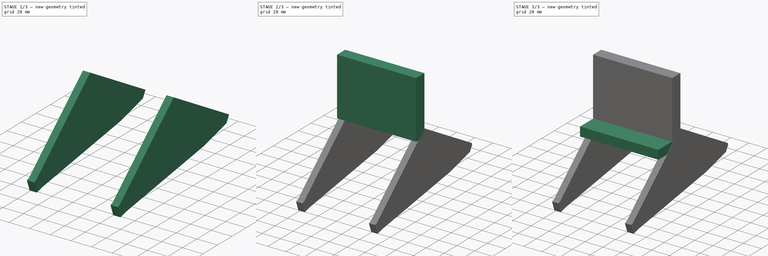
[diagram: build sequence overview — one tinted view per stage of 3, left to right]
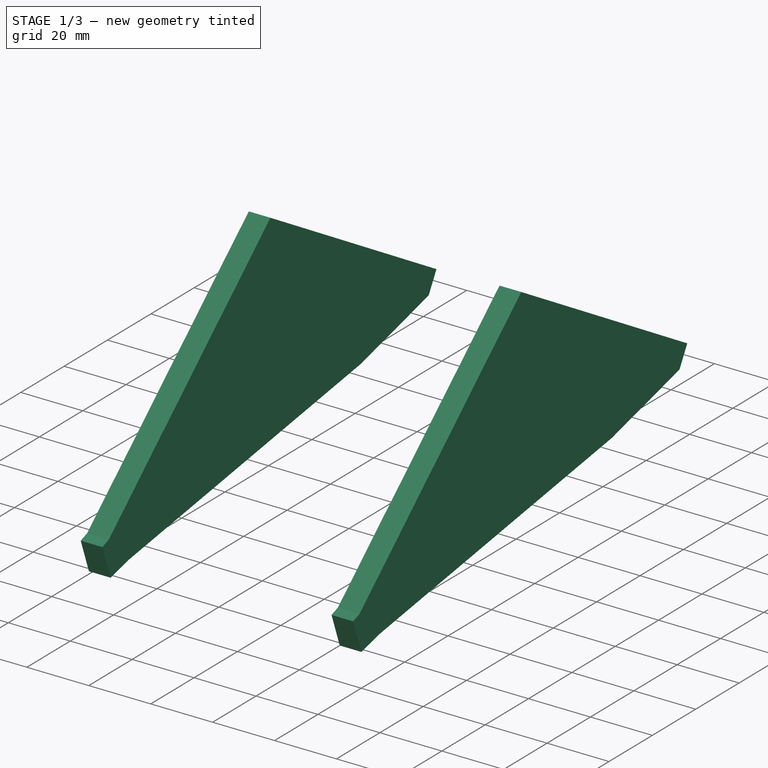
[diagram: stage 1 of 3 — iso view after this stage's code; geometry added in this stage tinted green]
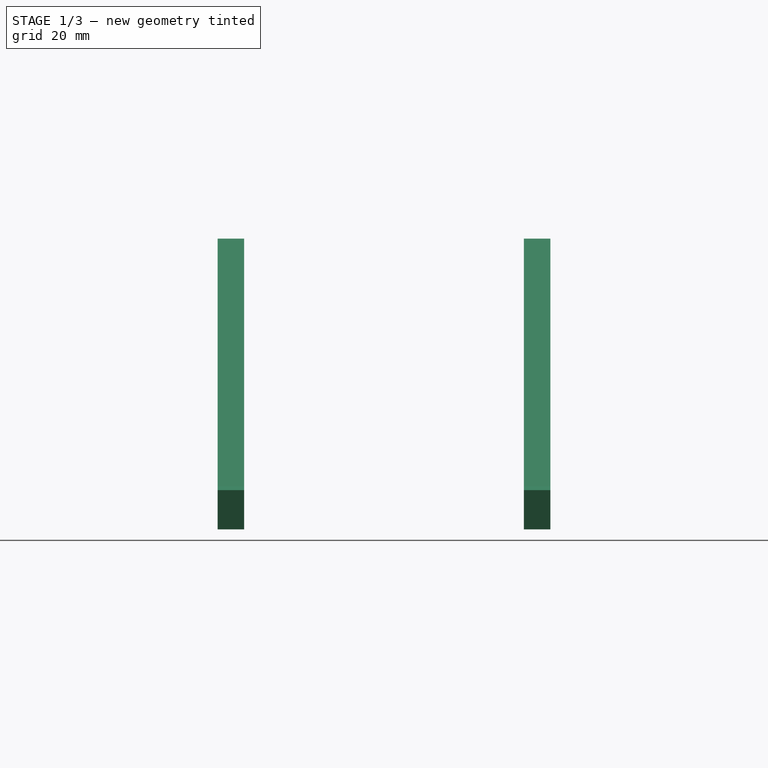
[diagram: stage 1 of 3 — front view after this stage's code; geometry added in this stage tinted green]
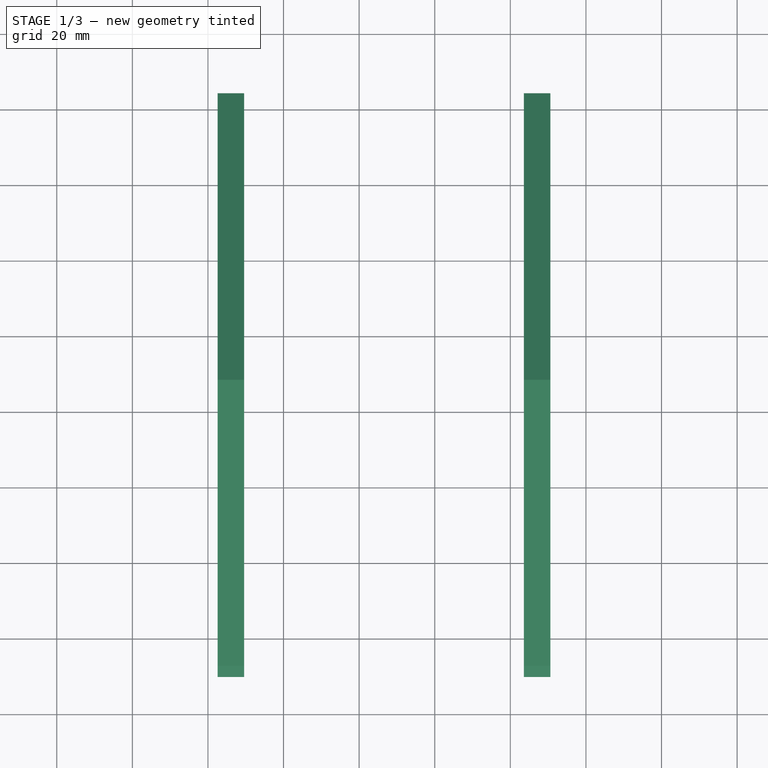
[diagram: stage 1 of 3 — top view after this stage's code; geometry added in this stage tinted green]
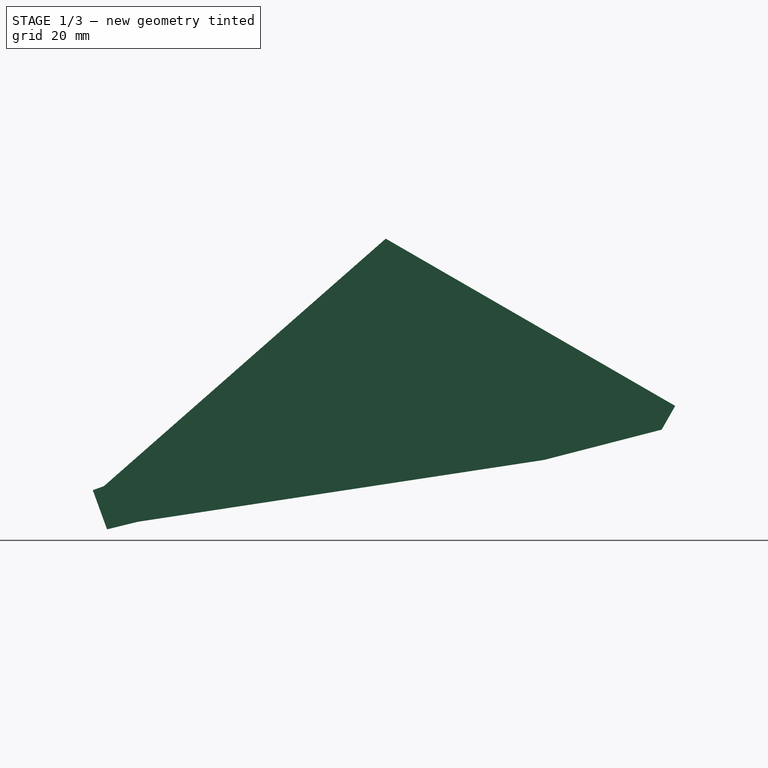
[diagram: stage 1 of 3 — right view after this stage's code; geometry added in this stage tinted green]
FCSTD DOCUMENT  (FreeCAD 0.17R13522 (Git))
Label: Suporte_2
License: All rights reserved
LicenseURL: http://en.wikipedia.org/wiki/All_rights_reserved
objects: Sketcher::SketchObject×5, Part::Extrusion×5, Part::MultiFuse×1
note: 11 computed .brp shape members not serialized (recipe doc carries the construction recipe); baked Part::Feature solids carry a one-line shape summary decoded from their .brp

FEATURE [Sketcher::SketchObject] Sketch008
  MapMode = 5
  Placement = pos=(42.5777,14,39) rot=(0.447214,-0.774597,-0.447214;1.82348rad)
  sketch-geometry (8):
    g0: LineSegment StartX=-123.305 StartY=6.07085 StartZ=0 EndX=-123.345 EndY=-1.16956 EndZ=0
    g1: LineSegment StartX=-123.345 StartY=-1.16956 StartZ=0 EndX=-100.407 EndY=-23.6651 EndZ=0
    g2: LineSegment StartX=-9.4672 StartY=-97.368 StartZ=0 EndX=-1.01841 EndY=-90.2813 EndZ=0
    g3: LineSegment StartX=-34.8682 StartY=6.09489 StartZ=0 EndX=-123.305 EndY=6.07085 EndZ=0
    g4: LineSegment StartX=-34.8682 StartY=6.09489 StartZ=0 EndX=-3.03674 EndY=-87.875 EndZ=0
    g5: LineSegment StartX=-3.03674 StartY=-87.875 StartZ=0 EndX=-1.01841 EndY=-90.2813 EndZ=0
    g6: LineSegment StartX=-100.407 StartY=-23.6651 StartZ=0 EndX=-15.5201 EndY=-91.5664 EndZ=0
    g7: LineSegment StartX=-15.5201 StartY=-91.5664 StartZ=0 EndX=-9.4672 EndY=-97.368 EndZ=0
  constraints (9):
    c: Coincident(g0,g1)
    c: Coincident(g3,g0)
    c: Coincident(g3,g4)
    c: Coincident(g4,g5)
    c: Coincident(g5,g2)
    c: Coincident(g1,g6)
    c: Coincident(g6,g7)
    c: Coincident(g7,g2)
    c: Perpendicular(g2,g5)
FEATURE [Part::Extrusion] Extrude008
  Base = -> Sketch008
  Dir = (-1,0,0)
  DirMode = 2
  FaceMakerClass = Part::FaceMakerBullseye
  LengthFwd = 7
  LengthRev = 0
  Placement = pos=(7,0,0) rot=(0,0,1;0rad)
  Solid = true
  Symmetric = false
FEATURE [Sketcher::SketchObject] Sketch
  MapMode = 5
  Placement = pos=(42.5777,14,39) rot=(0.447214,-0.774597,-0.447214;1.82348rad)
  sketch-geometry (8):
    g0: LineSegment StartX=-123.305 StartY=6.07085 StartZ=0 EndX=-123.345 EndY=-1.16956 EndZ=0
    g1: LineSegment StartX=-123.345 StartY=-1.16956 StartZ=0 EndX=-100.407 EndY=-23.6651 EndZ=0
    g2: LineSegment StartX=-9.4672 StartY=-97.368 StartZ=0 EndX=-1.01841 EndY=-90.2813 EndZ=0
    g3: LineSegment StartX=-34.8682 StartY=6.09489 StartZ=0 EndX=-123.305 EndY=6.07085 EndZ=0
    g4: LineSegment StartX=-34.8682 StartY=6.09489 StartZ=0 EndX=-3.03674 EndY=-87.875 EndZ=0
    g5: LineSegment StartX=-3.03674 StartY=-87.875 StartZ=0 EndX=-1.01841 EndY=-90.2813 EndZ=0
    g6: LineSegment StartX=-100.407 StartY=-23.6651 StartZ=0 EndX=-15.5201 EndY=-91.5664 EndZ=0
    g7: LineSegment StartX=-15.5201 StartY=-91.5664 StartZ=0 EndX=-9.4672 EndY=-97.368 EndZ=0
  constraints (9):
    c: Coincident(g0,g1)
    c: Coincident(g3,g0)
    c: Coincident(g3,g4)
    c: Coincident(g4,g5)
    c: Coincident(g5,g2)
    c: Coincident(g1,g6)
    c: Coincident(g6,g7)
    c: Coincident(g7,g2)
    c: Perpendicular(g2,g5)
FEATURE [Part::Extrusion] Extrude006
  Base = -> Sketch
  Dir = (-1,0,0)
  DirMode = 2
  FaceMakerClass = Part::FaceMakerBullseye
  LengthFwd = 7
  LengthRev = 0
  Placement = pos=(88,0,0) rot=(0,0,1;0rad)
  Solid = true
  Symmetric = false
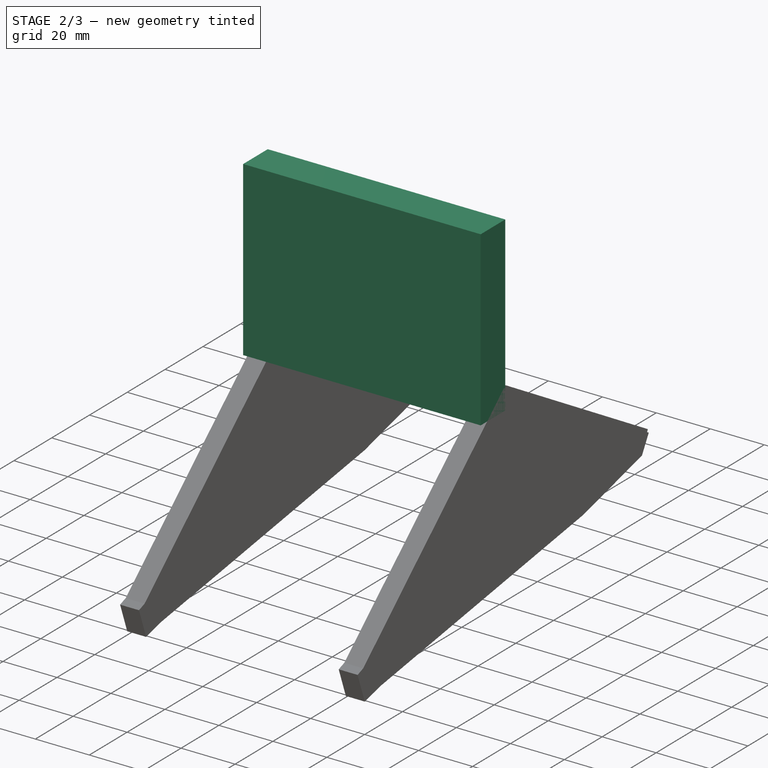
[diagram: stage 2 of 3 — iso view after this stage's code; geometry added in this stage tinted green]
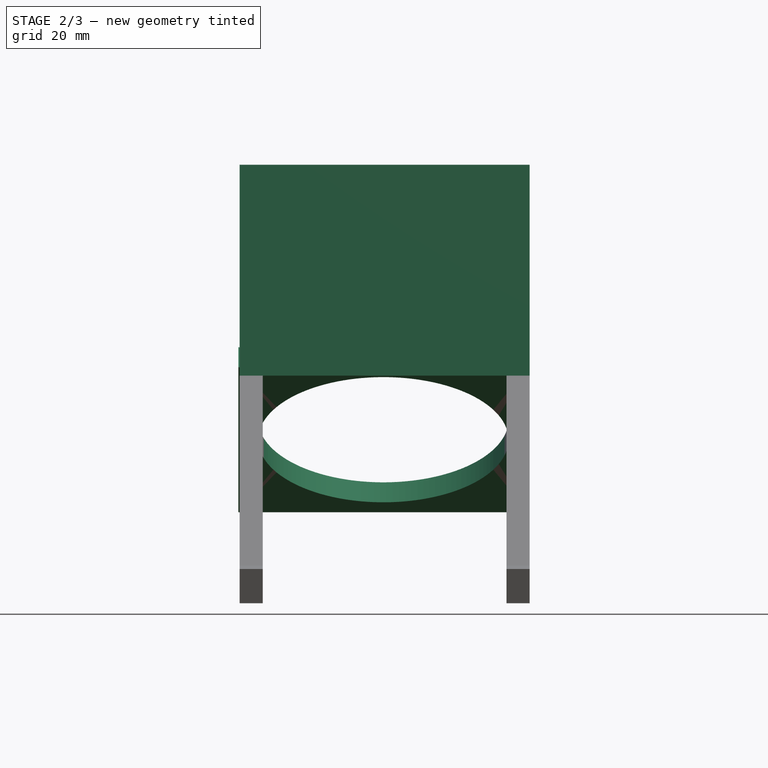
[diagram: stage 2 of 3 — front view after this stage's code; geometry added in this stage tinted green]
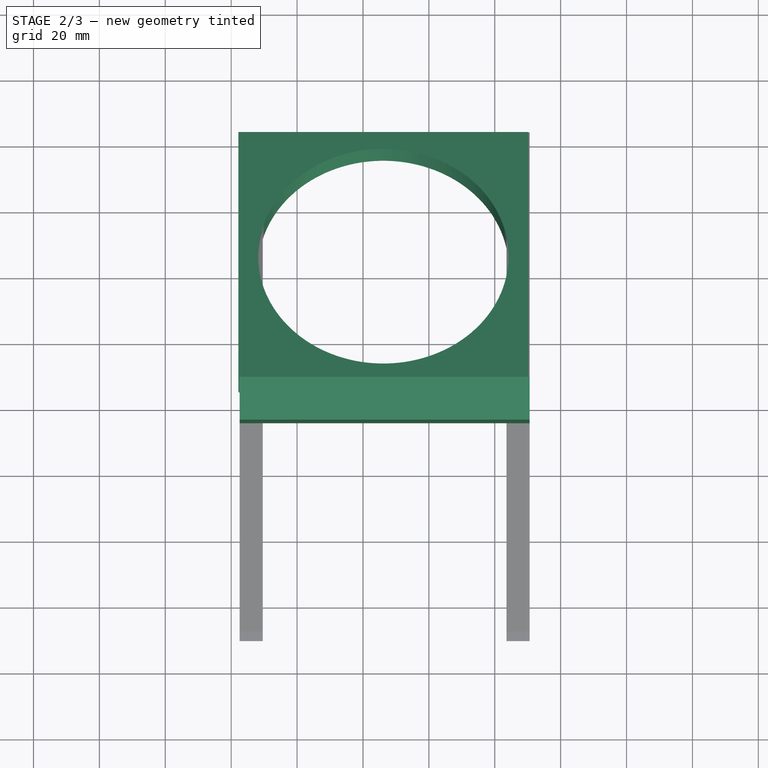
[diagram: stage 2 of 3 — top view after this stage's code; geometry added in this stage tinted green]
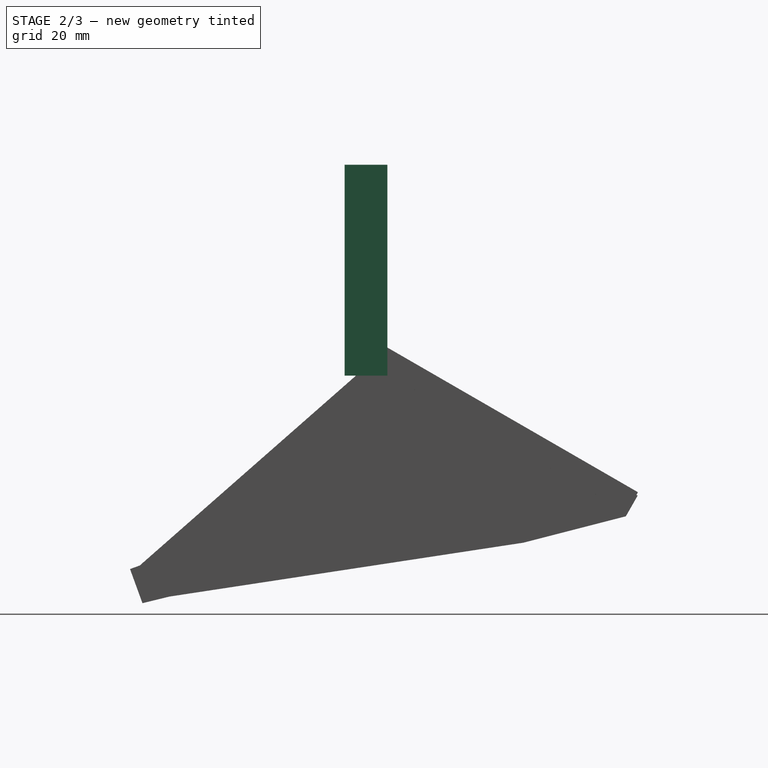
[diagram: stage 2 of 3 — right view after this stage's code; geometry added in this stage tinted green]
FEATURE [Part::Extrusion] Extrude005
  Base = -> Sketch005
  Dir = (0,0,1)
  DirMode = 2
  FaceMakerClass = Part::FaceMakerBullseye
  LengthFwd = 64
  LengthRev = 0
  Placement = pos=(3,0,19) rot=(0,0,1;0rad)
  Solid = true
  Symmetric = false
FEATURE [Sketcher::SketchObject] Sketch007
  MapMode = 5
  sketch-geometry (5):
    g0: LineSegment StartX=39.1898 StartY=122.876 StartZ=0 EndX=39.1898 EndY=34.8759 EndZ=0
    g1: LineSegment StartX=39.1898 StartY=34.8759 StartZ=0 EndX=127.19 EndY=34.8759 EndZ=0
    g2: LineSegment StartX=127.19 StartY=34.8759 StartZ=0 EndX=127.19 EndY=122.876 EndZ=0
    g3: LineSegment StartX=127.19 StartY=122.876 StartZ=0 EndX=39.1898 EndY=122.876 EndZ=0
    g4: Circle CenterX=83.1898 CenterY=78.8759 CenterZ=0 NormalX=0 NormalY=0 NormalZ=1 AngleXU=0 Radius=38
  constraints (13):
    c: Coincident(g0,g1)
    c: Coincident(g1,g2)
    c: Coincident(g2,g3)
    c: Coincident(g3,g0)
    c: Perpendicular(g2,g1)
    c: Perpendicular(g3,g2)
    c: Perpendicular(g0,g3)
    c: Horizontal(g3)
    c: DistanceY(g2,g2) = 88
    c: DistanceX(g3,g3) = 88
    c: Radius(g4) = 38
    c: DistanceY(g4,g0) = 44
    c: DistanceX(g0,g4) = 44
FEATURE [Part::Extrusion] Extrude007
  Base = -> Sketch007
  Dir = (0,0,1)
  DirMode = 2
  FaceMakerClass = Part::FaceMakerBullseye
  LengthFwd = 7
  LengthRev = 0
  Placement = pos=(3,14,39) rot=(-1,0,0;0.523599rad)
  Solid = true
  Symmetric = false
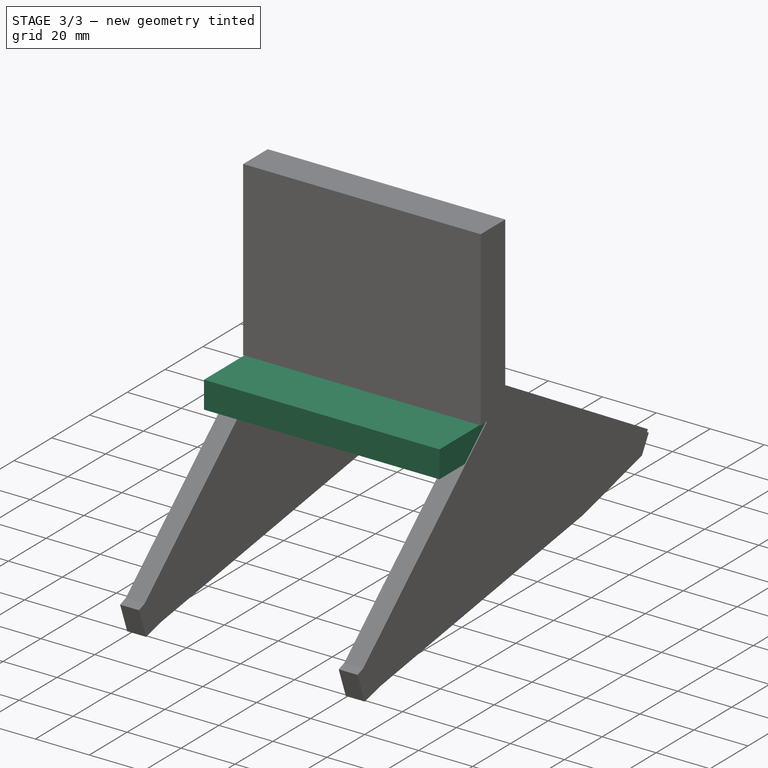
[diagram: stage 3 of 3 — iso view after this stage's code; geometry added in this stage tinted green]
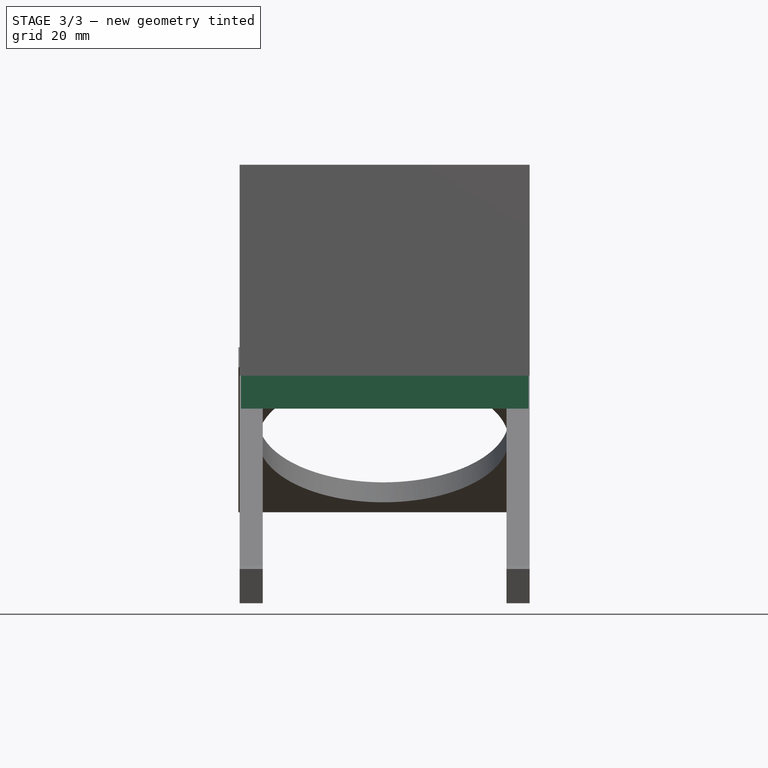
[diagram: stage 3 of 3 — front view after this stage's code; geometry added in this stage tinted green]
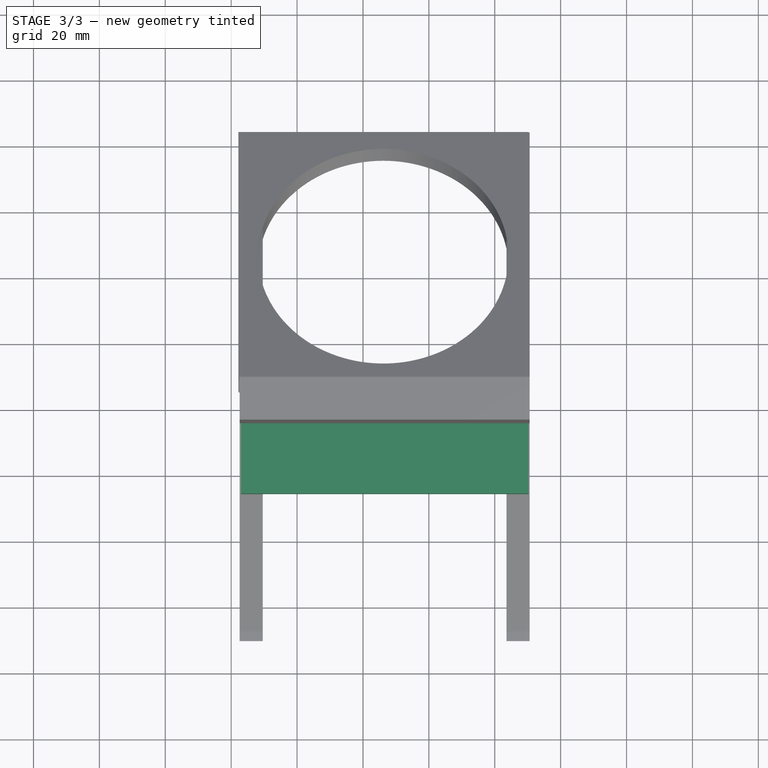
[diagram: stage 3 of 3 — top view after this stage's code; geometry added in this stage tinted green]
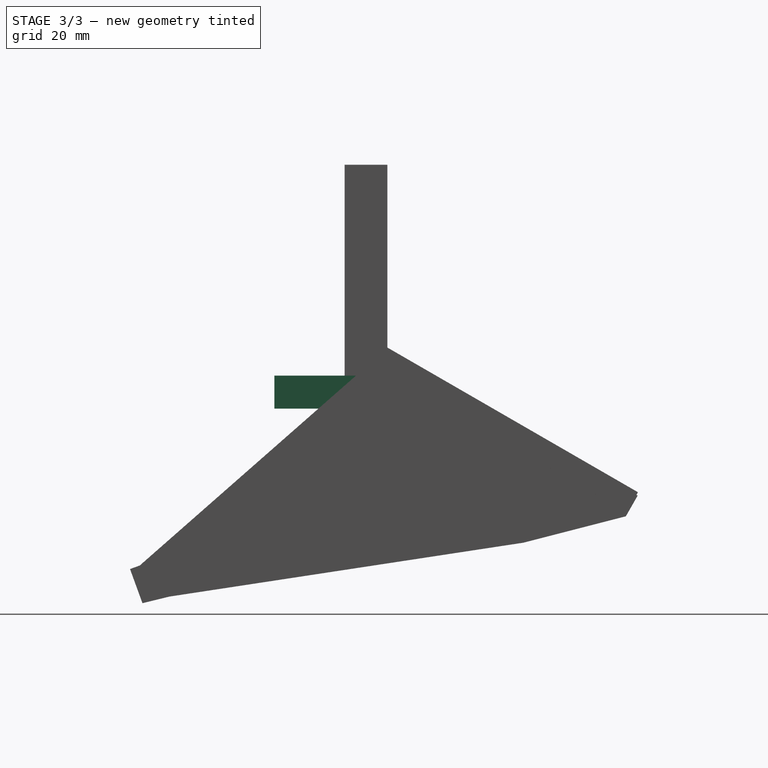
[diagram: stage 3 of 3 — right view after this stage's code; geometry added in this stage tinted green]
FEATURE [Sketcher::SketchObject] Sketch005
  MapMode = 5
  sketch-geometry (4):
    g0: LineSegment StartX=39.5777 StartY=47.8687 StartZ=0 EndX=39.5777 EndY=34.8687 EndZ=0
    g1: LineSegment StartX=39.5777 StartY=34.8687 StartZ=0 EndX=127.578 EndY=34.8687 EndZ=0
    g2: LineSegment StartX=127.578 StartY=34.8687 StartZ=0 EndX=127.578 EndY=47.8687 EndZ=0
    g3: LineSegment StartX=127.578 StartY=47.8687 StartZ=0 EndX=39.5777 EndY=47.8687 EndZ=0
  constraints (10):
    c: Coincident(g0,g1)
    c: Coincident(g1,g2)
    c: Coincident(g2,g3)
    c: Coincident(g3,g0)
    c: Perpendicular(g2,g1)
    c: Perpendicular(g3,g2)
    c: Perpendicular(g0,g3)
    c: Horizontal(g3)
    c: DistanceY(g2,g2) = 13
    c: DistanceX(g3,g3) = 88
FEATURE [Sketcher::SketchObject] Sketch004
  MapMode = 5
  sketch-geometry (4):
    g0: LineSegment StartX=39.98 StartY=47.8377 StartZ=0 EndX=39.98 EndY=13.5387 EndZ=0
    g1: LineSegment StartX=39.98 StartY=13.5387 StartZ=0 EndX=127.229 EndY=13.5387 EndZ=0
    g2: LineSegment StartX=127.229 StartY=13.5387 StartZ=0 EndX=127.229 EndY=47.8377 EndZ=0
    g3: LineSegment StartX=127.229 StartY=47.8377 StartZ=0 EndX=39.98 EndY=47.8377 EndZ=0
  constraints (8):
    c: Coincident(g0,g1)
    c: Coincident(g1,g2)
    c: Coincident(g2,g3)
    c: Coincident(g3,g0)
    c: Perpendicular(g2,g1)
    c: Perpendicular(g3,g2)
    c: Perpendicular(g0,g3)
    c: Horizontal(g3)
FEATURE [Part::Extrusion] Extrude004
  Base = -> Sketch004
  Dir = (0,0,1)
  DirMode = 2
  FaceMakerClass = Part::FaceMakerBullseye
  LengthFwd = 10
  LengthRev = 0
  Placement = pos=(3,0,9) rot=(0,0,1;0rad)
  Solid = true
  Symmetric = false
FEATURE [Part::MultiFuse] Fusion  label="Suporte2"
  Shapes = -> [Extrude005,Extrude008,Extrude004,Extrude006,Extrude007]
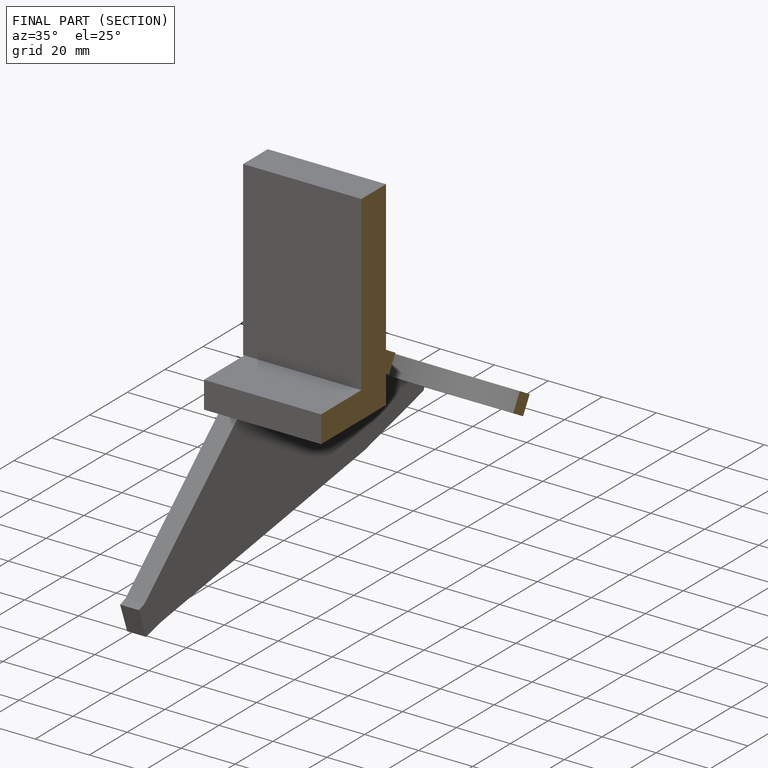
[diagram: finished part — half-section view (interior)]
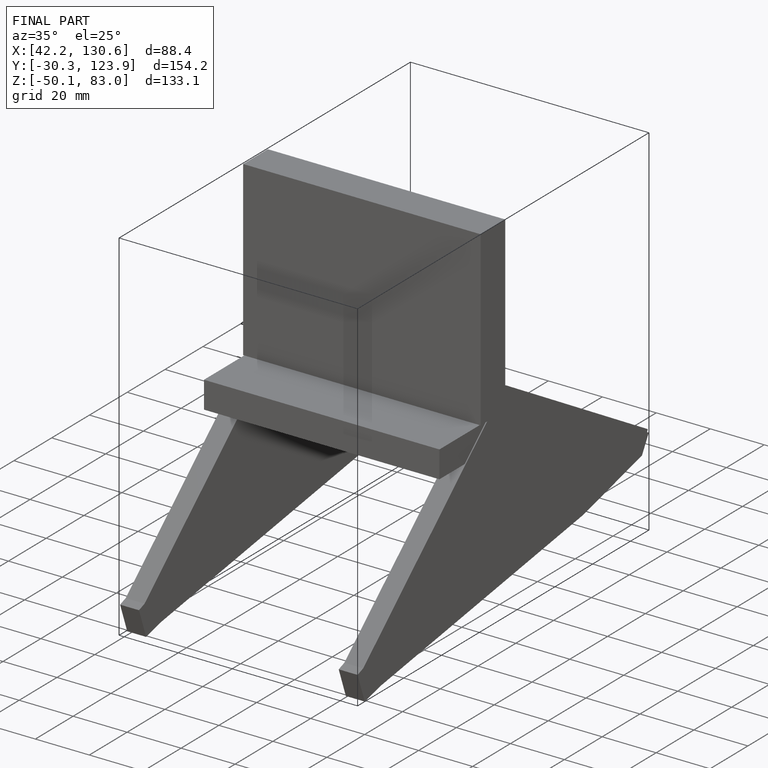
[diagram: finished part — iso view with bounding-box wireframe]
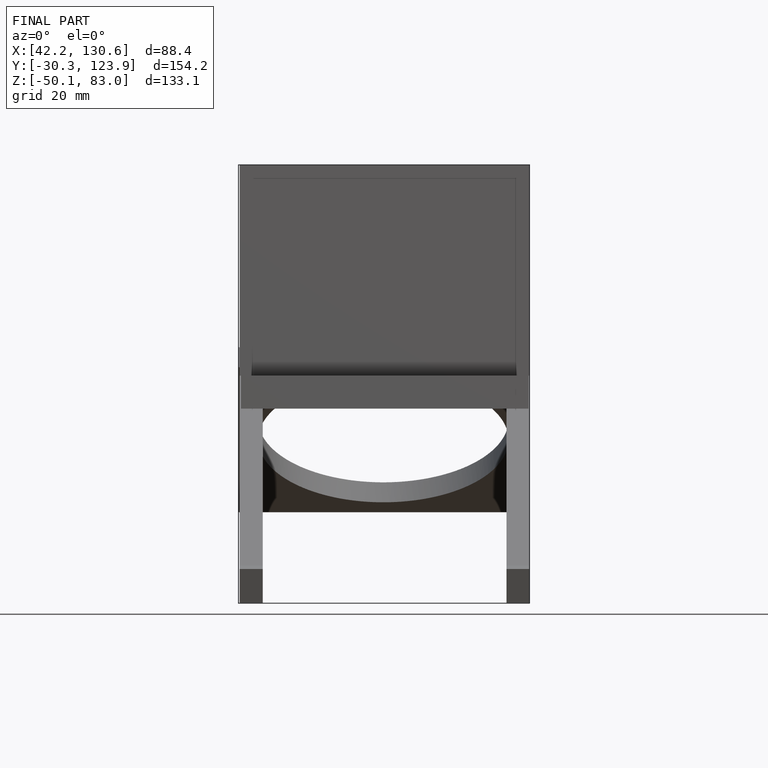
[diagram: finished part — front view with bounding-box wireframe]
